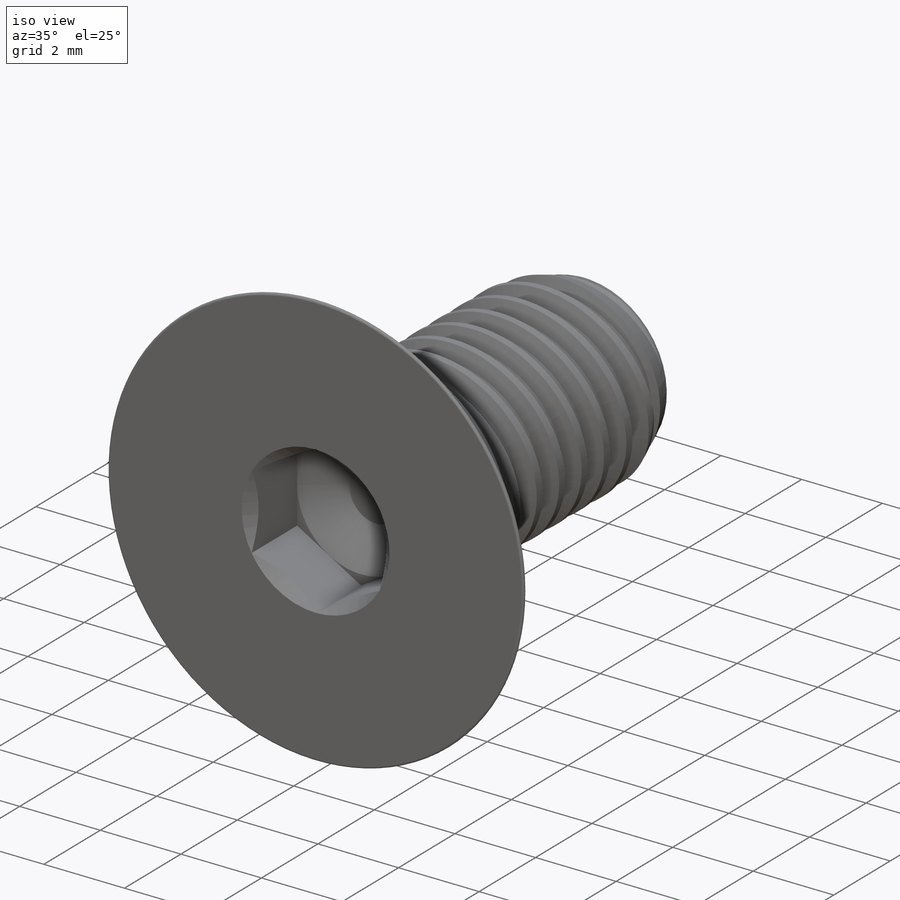
[diagram: iso view]
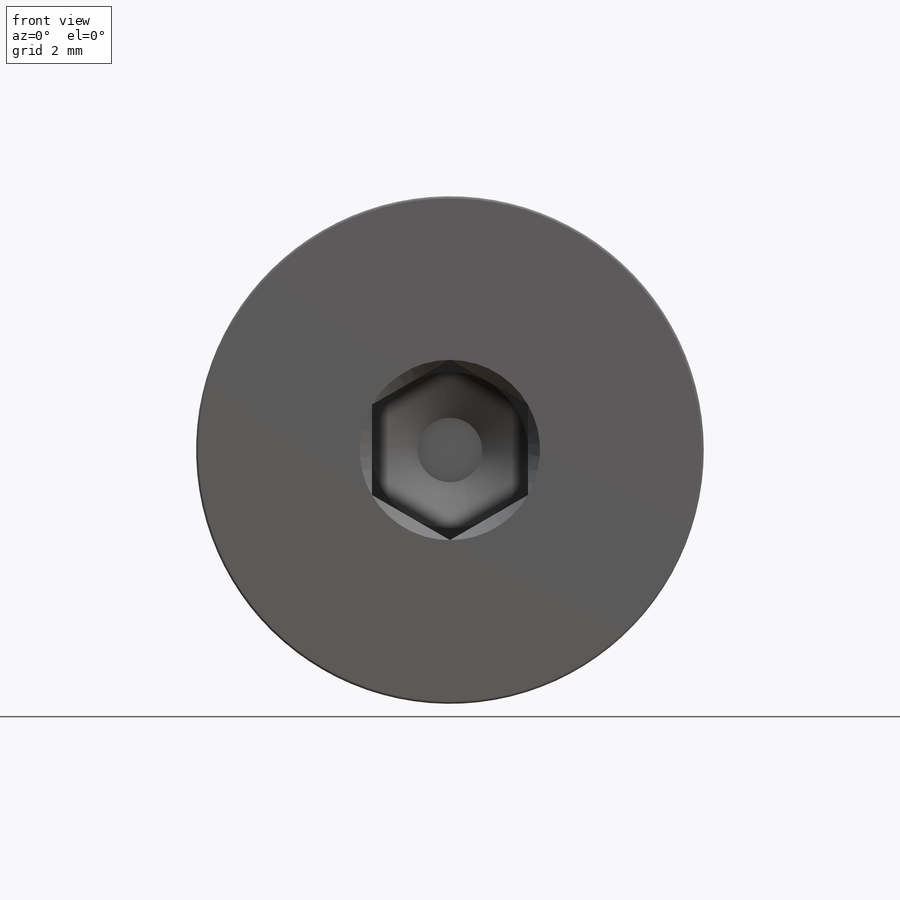
[diagram: front view]
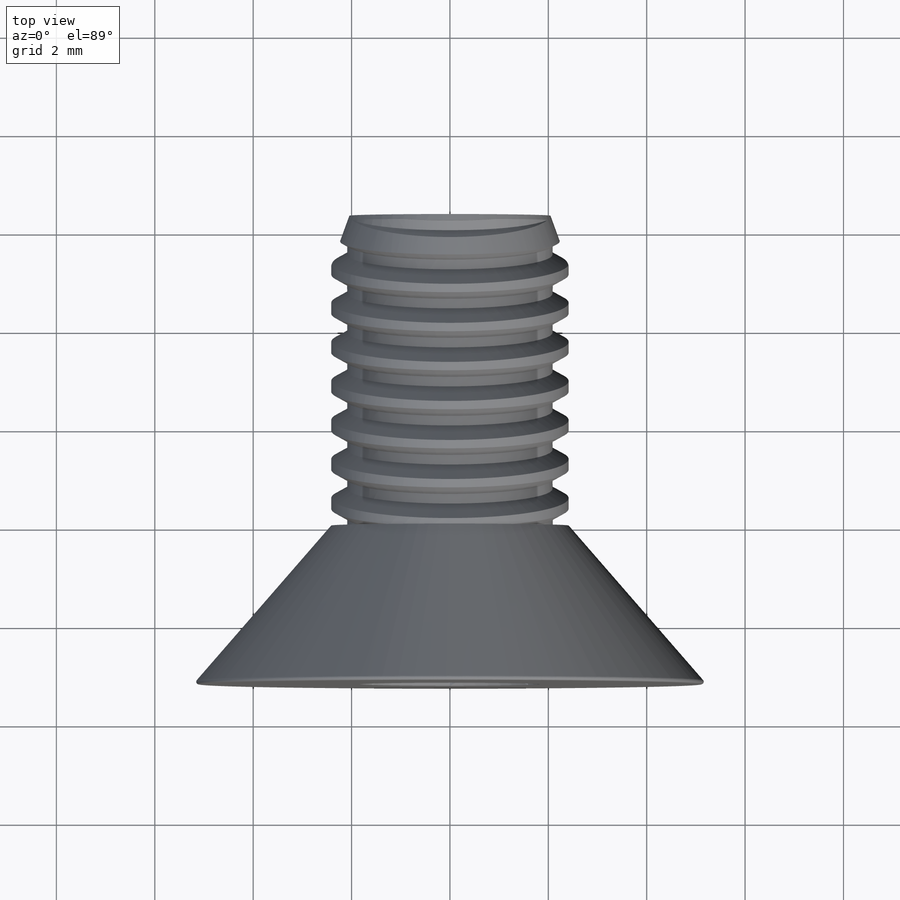
[diagram: top view]
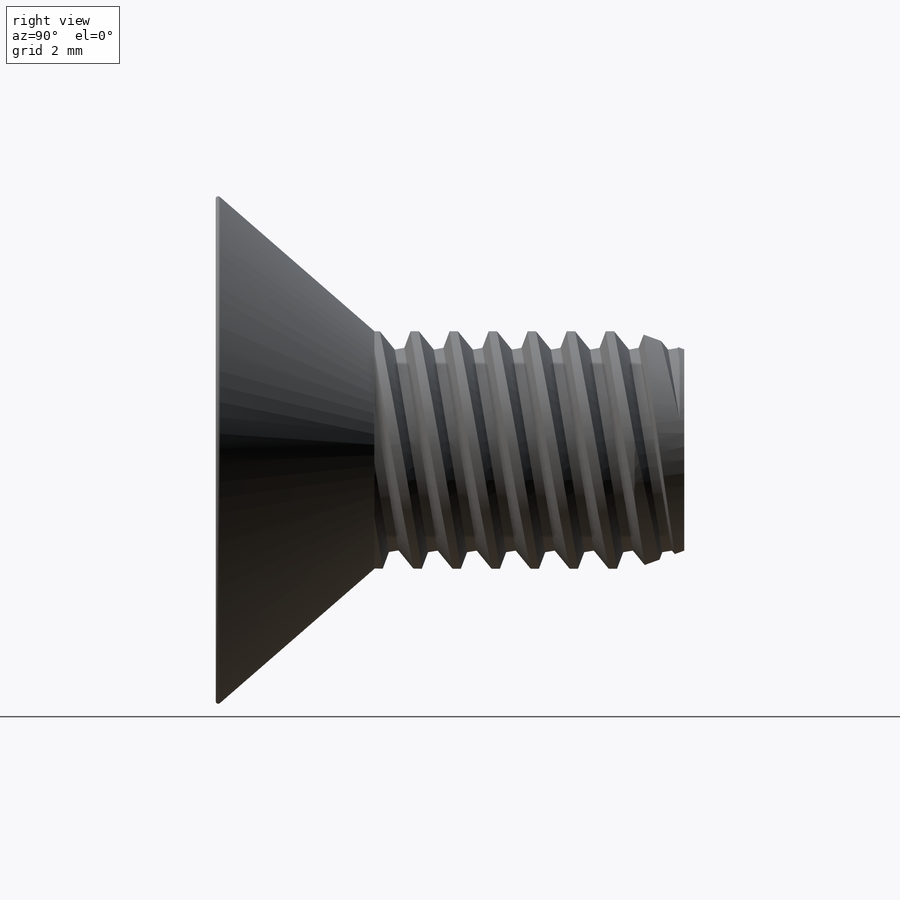
[diagram: right view]
SOLIDWORKS PART (.sldprt)
format: sldprt  version: not decoded by parser v0  size: 539,136 bytes
history: native  units: mm
features: sketch x8, cut_revolve x3, cut_extrude x3, pattern_linear x2, material x1, revolve x1, plane x1, extrude x1, fillet x1 (+12 scaffold rows collapsed)
feature tree (33):
  scaffold x12  (default folders/planes/origin — collapsed)
  material  "AISI 4340 Steel, normalized"
  sketch  "Sketch1"  dims[Thread Dia=4.826mm Screw Length=228.6mm Length=9.525mm Head Height=3.2258mm D1=6.2992mm]
  revolve  "Revolve1"  Angle=360deg
  plane  "Plane1"
  sketch  "Sketch2"  dims[c1.Thread Pitch=~0.79375mm c1.D2=~0.099219mm c1.D3=~0.198437mm c1.D4=~0.79375mm c1.D1=~12.704307mm c2.D1=60.0deg c2.Thread Length=298.45mm c2.Min Thread Length=190.5mm c2.D5=~294.890463mm c2.D6=~292.121934mm c3.D5=90.0deg c4.D5=190.5mm c4.D6=90.0deg c4.Thread Length=298.45mm c5.D5=~4.763642deg c5.Min Thread Length=50.8mm]
  cut_revolve  "Cut-Revolve1"  Angle=360deg
  sketch  "Sketch3"  dims[c1.D1=~17.969819mm c2.D1=20.0deg c2.D2=4.826mm]
  cut_revolve  "Cut-Revolve2"  Angle=360deg
  pattern_linear  "LPattern1"  Count1=8 Count2=1 Spacing1=0.79375mm Spacing2=50mm
  pattern_linear  "LPattern2"  Count1=2 Count2=1 Spacing1=0.79375mm Spacing2=50mm
  sketch  "Sketch4"  dims[Head Dia=10.4394mm]
  extrude  "Extrude1"  [1 undecoded]
  sketch  "Sketch9"  dims[c1.D2=~0.770447mm c1.D4=0.127mm c1.D1=~9.560296mm c2.D1=82.0deg c2.D2=0.508mm c2.D3=0.508mm]
  cut_revolve  "Cut-Revolve3"  Angle=360deg
  fillet  "Fillet1"  Radius=0.0508mm
  sketch  "Sketch6"  dims[Hex=3.175mm]
  cut_extrude  "Cut-Extrude1"  Depth=1.6129mm
  sketch  "Sketch7"
  cut_extrude  "Cut-Extrude4"  Depth=1.6129mm
  sketch  "Sketch8"
  cut_extrude  "Cut-Extrude5"  Depth=0.537633mm
decode coverage: 16 of 19 modeling features carry decoded parameters
note: ~ marks probable driven/reference dimensions
note: 1 parameter value undecoded
note: suppression state not decoded; provenance and decode notes live in map.json
